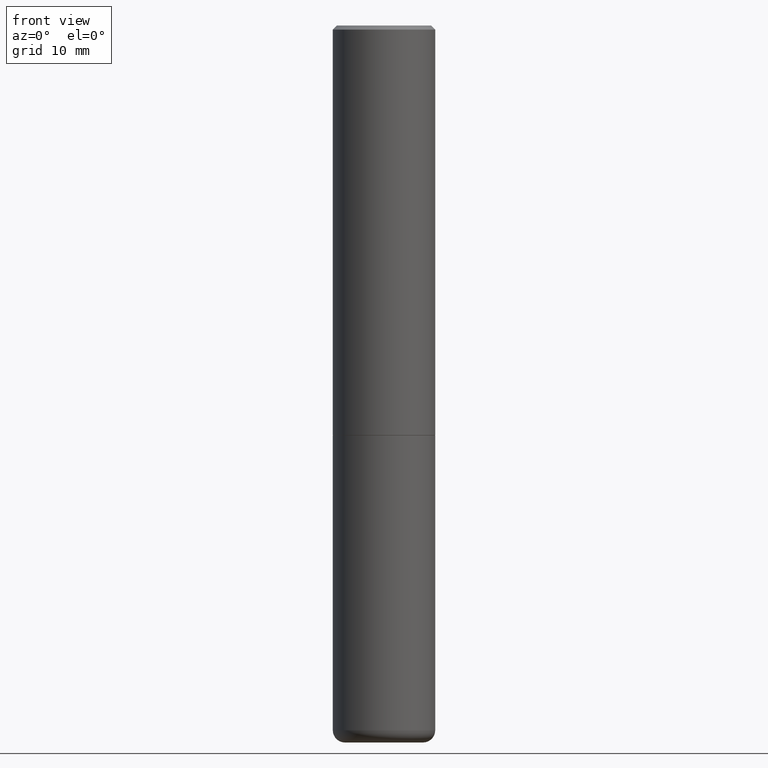
[diagram: clean part render]
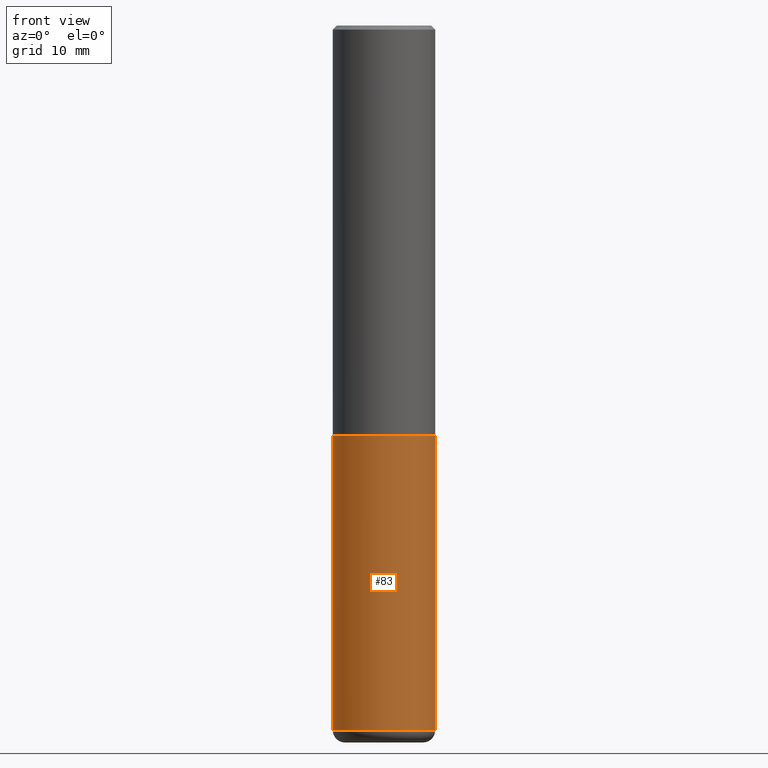
[diagram: same view with one face highlighted and labeled with its STEP entity id]
A machine part, front view. The second image highlights one B-rep face of the part: STEP entity #83.
In plain terms, the highlighted cylindrical surface (partial cylindrical patch) has radius 6.35 mm, axis along (-0, 0, 1).
Its self-contained STEP definition (entity closure, byte-faithful):
#2 = DIRECTION ( 'NONE',  ( -2.445468806185136597E-29, 3.491481338843145583E-15, 1.000000000000000000 ) ) ;
#12 = ORIENTED_EDGE ( 'NONE', *, *, #289, .F. ) ;
#31 = DIRECTION ( 'NONE',  ( -2.445468806185136877E-29, 3.491481338843145188E-15, 1.000000000000000000 ) ) ;
#32 = DIRECTION ( 'NONE',  ( -2.445468806185136877E-29, 3.491481338843145188E-15, 1.000000000000000000 ) ) ;
#51 = EDGE_CURVE ( 'NONE', #109, #282, #321, .T. ) ;
#50 = DIRECTION ( 'NONE',  ( -2.445468806185136597E-29, 3.491481338843145583E-15, 1.000000000000000000 ) ) ;
#57 = CARTESIAN_POINT ( 'NONE',  ( 0.000000000000000000, 0.000000000000000000, 0.000000000000000000 ) ) ;
#68 = CARTESIAN_POINT ( 'NONE',  ( -0.2500000000000000000, -7.720472402253106025E-15, -2.000000000000000000 ) ) ;
#83 = ADVANCED_FACE ( 'NONE', ( #276 ), #350, .T. ) ;
#92 = CARTESIAN_POINT ( 'NONE',  ( 0.2499999999999999722, -1.375643647504198770E-14, -3.439999999999999947 ) ) ;
#101 = DIRECTION ( 'NONE',  ( 1.000000000000000000, -6.982962677686266711E-15, 0.000000000000000000 ) ) ;
#109 = VERTEX_POINT ( 'NONE', #279 ) ;
#114 = ORIENTED_EDGE ( 'NONE', *, *, #51, .T. ) ;
#139 = CARTESIAN_POINT ( 'NONE',  ( 4.890937612370273194E-29, -6.982962677686291165E-15, -2.000000000000000000 ) ) ;
#147 = AXIS2_PLACEMENT_3D ( 'NONE', #222, #50, #155 ) ;
#153 = ORIENTED_EDGE ( 'NONE', *, *, #160, .T. ) ;
#155 = DIRECTION ( 'NONE',  ( 1.000000000000000000, -6.982962677686270655E-15, 0.000000000000000000 ) ) ;
#160 = EDGE_CURVE ( 'NONE', #282, #247, #260, .T. ) ;
#180 = EDGE_LOOP ( 'NONE', ( #12, #114, #153, #342 ) ) ;
#191 = DIRECTION ( 'NONE',  ( 1.000000000000000000, -6.982962677686266711E-15, 4.876176775795935793E-29 ) ) ;
#203 = CARTESIAN_POINT ( 'NONE',  ( 0.2500000000000000000, -1.745740669421566678E-15, 1.219044193948983948E-29 ) ) ;
#211 = EDGE_CURVE ( 'NONE', #244, #247, #306, .T. ) ;
#222 = CARTESIAN_POINT ( 'NONE',  ( 8.412412693276869938E-29, -1.201069580562042103E-14, -3.439999999999999947 ) ) ;
#223 = VECTOR ( 'NONE', #31, 39.37007874015748143 ) ;
#235 = VECTOR ( 'NONE', #32, 39.37007874015748143 ) ;
#244 = VERTEX_POINT ( 'NONE', #68 ) ;
#247 = VERTEX_POINT ( 'NONE', #253 ) ;
#253 = CARTESIAN_POINT ( 'NONE',  ( 0.2500000000000000000, -8.728703347107857054E-15, -2.000000000000000000 ) ) ;
#260 = LINE ( 'NONE', #203, #223 ) ;
#262 = LINE ( 'NONE', #418, #235 ) ;
#276 = FACE_OUTER_BOUND ( 'NONE', #180, .T. ) ;
#279 = CARTESIAN_POINT ( 'NONE',  ( -0.2499999999999999722, -1.023433896622016898E-14, -3.439999999999999947 ) ) ;
#282 = VERTEX_POINT ( 'NONE', #92 ) ;
#289 = EDGE_CURVE ( 'NONE', #109, #244, #262, .T. ) ;
#300 = AXIS2_PLACEMENT_3D ( 'NONE', #139, #2, #101 ) ;
#306 = CIRCLE ( 'NONE', #300, 0.2500000000000000000 ) ;
#321 = CIRCLE ( 'NONE', #147, 0.2500000000000000000 ) ;
#342 = ORIENTED_EDGE ( 'NONE', *, *, #211, .F. ) ;
#350 = CYLINDRICAL_SURFACE ( 'NONE', #416, 0.2500000000000000000 ) ;
#353 = DIRECTION ( 'NONE',  ( -2.445468806185136597E-29, 3.491481338843145583E-15, 1.000000000000000000 ) ) ;
#416 = AXIS2_PLACEMENT_3D ( 'NONE', #57, #353, #191 ) ;
#418 = CARTESIAN_POINT ( 'NONE',  ( -0.2500000000000000000, 1.776356839400250465E-15, -1.229733772563726445E-29 ) ) ;